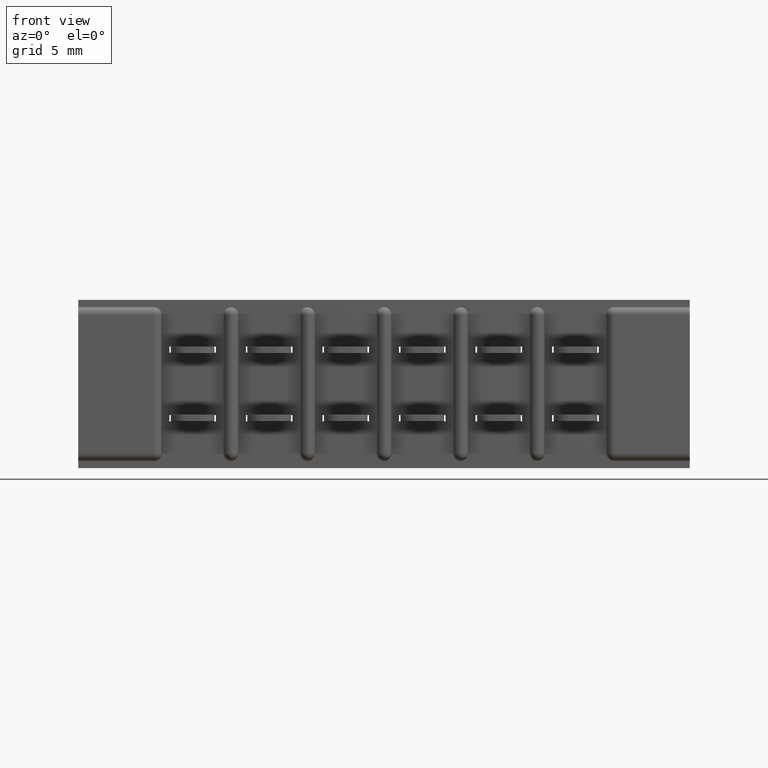
[diagram: clean part render]
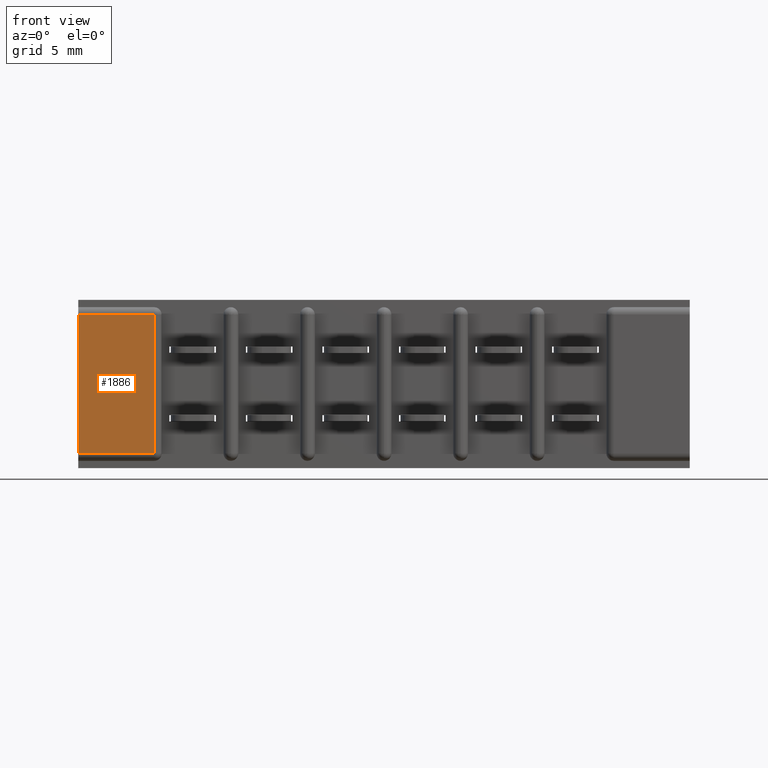
[diagram: same view with one face highlighted and labeled with its STEP entity id]
A machine part, front view. The second image highlights one B-rep face of the part: STEP entity #1886.
In plain terms, the highlighted planar face has unit normal (0, -1, 0).
Its self-contained STEP definition (entity closure, byte-faithful):
#402 = CARTESIAN_POINT ( 'NONE',  ( 0.4530000000000030700, 0.0000000000000000000, -0.02999999999999995400 ) ) ;
#740 = EDGE_CURVE ( 'NONE', #9810, #3743, #8165, .T. ) ;
#1069 = AXIS2_PLACEMENT_3D ( 'NONE', #7029, #9413, #8683 ) ;
#1324 = FACE_OUTER_BOUND ( 'NONE', #5190, .T. ) ;
#1461 = CARTESIAN_POINT ( 'NONE',  ( 0.2979999999999999900, 0.0000000000000000000, -0.02999999999999995400 ) ) ;
#1508 = ORIENTED_EDGE ( 'NONE', *, *, #4437, .T. ) ;
#1550 = CARTESIAN_POINT ( 'NONE',  ( 0.0000000000000000000, 0.0000000000000000000, -0.02999999999999995400 ) ) ;
#1562 = ORIENTED_EDGE ( 'NONE', *, *, #1902, .T. ) ;
#1886 = ADVANCED_FACE ( 'NONE', ( #1324 ), #9494, .T. ) ;
#1902 = EDGE_CURVE ( 'NONE', #4766, #9810, #6681, .T. ) ;
#2508 = DIRECTION ( 'NONE',  ( 1.000000000000000000, -0.0000000000000000000, -0.0000000000000000000 ) ) ;
#2579 = CARTESIAN_POINT ( 'NONE',  ( 1.842000000000000700, 0.0000000000000000000, -0.3130000000000000600 ) ) ;
#3029 = VECTOR ( 'NONE', #7278, 39.37007874015748100 ) ;
#3383 = DIRECTION ( 'NONE',  ( -4.977857131312432700E-016, 0.0000000000000000000, -1.000000000000000000 ) ) ;
#3743 = VERTEX_POINT ( 'NONE', #1461 ) ;
#4268 = VECTOR ( 'NONE', #9455, 39.37007874015748100 ) ;
#4437 = EDGE_CURVE ( 'NONE', #3743, #10617, #4989, .T. ) ;
#4766 = VERTEX_POINT ( 'NONE', #9224 ) ;
#4989 = LINE ( 'NONE', #5803, #10120 ) ;
#5190 = EDGE_LOOP ( 'NONE', ( #1508, #9059, #1562, #7631 ) ) ;
#5379 = CARTESIAN_POINT ( 'NONE',  ( 0.4530000000000030700, 0.0000000000000000000, -0.02999999999999995400 ) ) ;
#5482 = VECTOR ( 'NONE', #2508, 39.37007874015748100 ) ;
#5498 = EDGE_CURVE ( 'NONE', #10617, #4766, #5748, .T. ) ;
#5748 = LINE ( 'NONE', #2579, #5482 ) ;
#5803 = CARTESIAN_POINT ( 'NONE',  ( 0.2979999999999999900, 0.0000000000000000000, 0.0000000000000000000 ) ) ;
#6681 = LINE ( 'NONE', #402, #4268 ) ;
#7029 = CARTESIAN_POINT ( 'NONE',  ( 0.0000000000000000000, 0.0000000000000000000, -0.3430000000000000300 ) ) ;
#7278 = DIRECTION ( 'NONE',  ( -1.000000000000000000, 0.0000000000000000000, 0.0000000000000000000 ) ) ;
#7381 = CARTESIAN_POINT ( 'NONE',  ( 0.2979999999999998200, 0.0000000000000000000, -0.3130000000000000600 ) ) ;
#7631 = ORIENTED_EDGE ( 'NONE', *, *, #740, .T. ) ;
#8165 = LINE ( 'NONE', #1550, #3029 ) ;
#8683 = DIRECTION ( 'NONE',  ( 0.0000000000000000000, -0.0000000000000000000, -1.000000000000000000 ) ) ;
#9059 = ORIENTED_EDGE ( 'NONE', *, *, #5498, .T. ) ;
#9224 = CARTESIAN_POINT ( 'NONE',  ( 0.4530000000000030700, 0.0000000000000000000, -0.3130000000000000600 ) ) ;
#9413 = DIRECTION ( 'NONE',  ( 0.0000000000000000000, -1.000000000000000000, 0.0000000000000000000 ) ) ;
#9455 = DIRECTION ( 'NONE',  ( 6.030569522437654900E-016, -0.0000000000000000000, 1.000000000000000000 ) ) ;
#9494 = PLANE ( 'NONE',  #1069 ) ;
#9810 = VERTEX_POINT ( 'NONE', #5379 ) ;
#10120 = VECTOR ( 'NONE', #3383, 39.37007874015748100 ) ;
#10617 = VERTEX_POINT ( 'NONE', #7381 ) ;